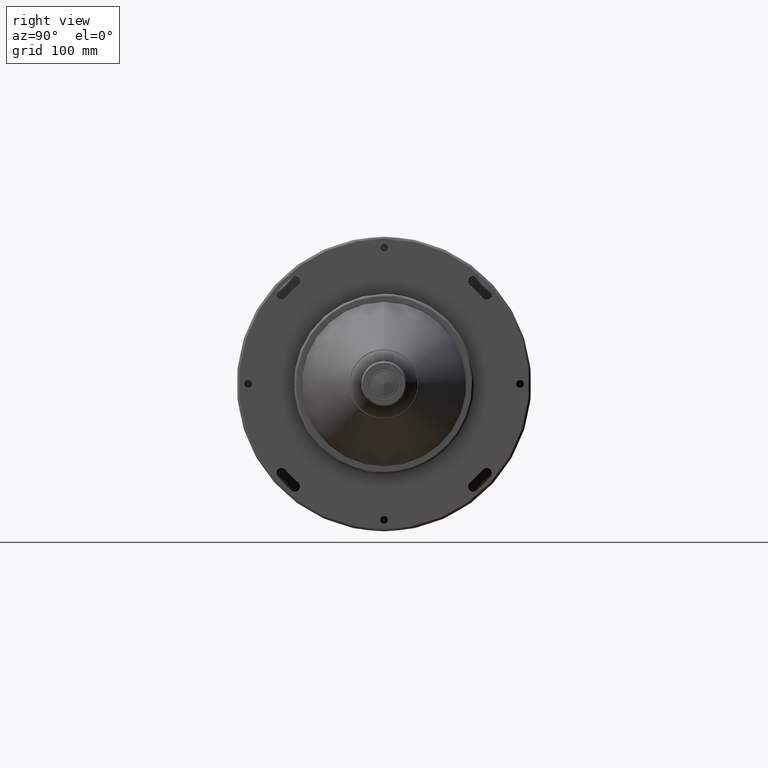
[diagram: clean part render]
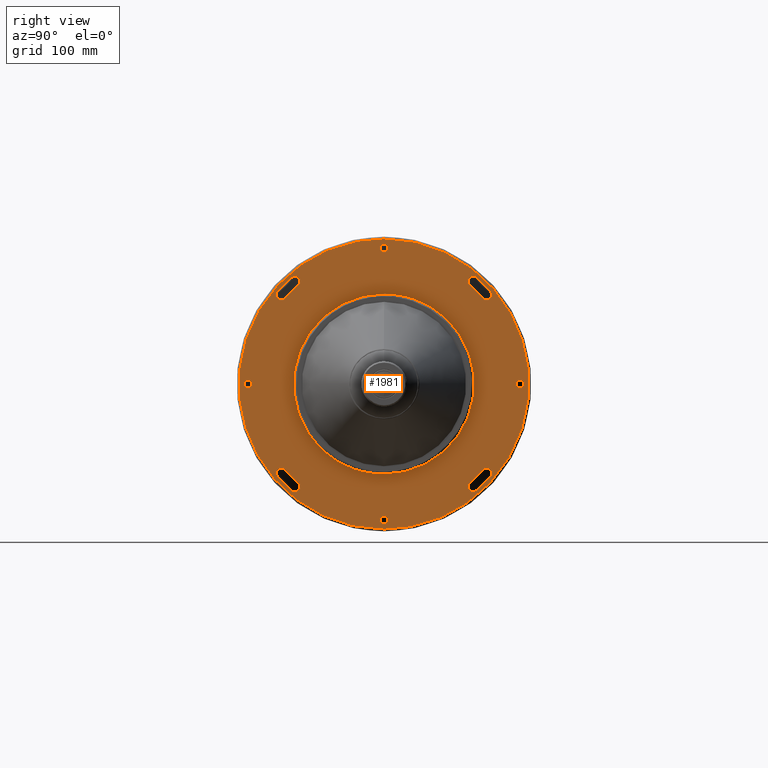
[diagram: same view with one face highlighted and labeled with its STEP entity id]
A machine part, right view. The second image highlights one B-rep face of the part: STEP entity #1981.
In plain terms, the highlighted planar face has unit normal (-1, 0, 0).
Its self-contained STEP definition (entity closure, byte-faithful):
#8 = DIRECTION ( 'NONE',  ( 1.000000000000000000, 0.0000000000000000000, 0.0000000000000000000 ) ) ;
#11 = VERTEX_POINT ( 'NONE', #1114 ) ;
#14 = DIRECTION ( 'NONE',  ( 0.0000000000000000000, 0.0000000000000000000, -1.000000000000000000 ) ) ;
#21 = EDGE_CURVE ( 'NONE', #3290, #303, #3824, .T. ) ;
#36 = AXIS2_PLACEMENT_3D ( 'NONE', #949, #1939, #3972 ) ;
#41 = CARTESIAN_POINT ( 'NONE',  ( 264.3000000000000100, 0.0000000000000000000, 116.5999999999999900 ) ) ;
#52 = CIRCLE ( 'NONE', #36, 115.5000000000000000 ) ;
#64 = CARTESIAN_POINT ( 'NONE',  ( 264.3000000000000100, 81.67934910882071600, -93.96134273836167900 ) ) ;
#70 = EDGE_CURVE ( 'NONE', #3647, #3522, #595, .T. ) ;
#78 = CARTESIAN_POINT ( 'NONE',  ( 264.3000000000000100, -90.56514962700002500, -78.72708347900002900 ) ) ;
#85 = CARTESIAN_POINT ( 'NONE',  ( 264.3000000000000100, -78.72708347900002900, -90.56514962700002500 ) ) ;
#129 = AXIS2_PLACEMENT_3D ( 'NONE', #915, #2934, #3451 ) ;
#156 = ORIENTED_EDGE ( 'NONE', *, *, #70, .F. ) ;
#198 = DIRECTION ( 'NONE',  ( 1.000000000000000000, 0.0000000000000000000, 0.0000000000000000000 ) ) ;
#211 = EDGE_CURVE ( 'NONE', #5211, #1183, #2301, .T. ) ;
#222 = CIRCLE ( 'NONE', #5371, 115.5000000000000000 ) ;
#229 = EDGE_LOOP ( 'NONE', ( #156, #3398, #1345, #608, #988 ) ) ;
#244 = AXIS2_PLACEMENT_3D ( 'NONE', #1082, #4746, #515 ) ;
#248 = DIRECTION ( 'NONE',  ( 1.000000000000000000, 0.0000000000000000000, 0.0000000000000000000 ) ) ;
#271 = ORIENTED_EDGE ( 'NONE', *, *, #3216, .F. ) ;
#276 = CARTESIAN_POINT ( 'NONE',  ( 264.3000000000000100, 0.0000000000000000000, -120.0000000000000000 ) ) ;
#290 = CARTESIAN_POINT ( 'NONE',  ( 264.3000000000000100, 0.0000000000000000000, 127.9999999754913300 ) ) ;
#303 = VERTEX_POINT ( 'NONE', #6063 ) ;
#305 = EDGE_CURVE ( 'NONE', #2520, #323, #2144, .T. ) ;
#323 = VERTEX_POINT ( 'NONE', #825 ) ;
#340 = AXIS2_PLACEMENT_3D ( 'NONE', #4350, #5436, #2873 ) ;
#375 = CIRCLE ( 'NONE', #4115, 124.5000000000000000 ) ;
#383 = DIRECTION ( 'NONE',  ( 1.000000000000000000, 0.0000000000000000000, 0.0000000000000000000 ) ) ;
#419 = CIRCLE ( 'NONE', #6519, 4.499999999999990200 ) ;
#428 = CIRCLE ( 'NONE', #683, 124.5000000000000000 ) ;
#429 = EDGE_LOOP ( 'NONE', ( #4692, #4621, #4141, #1944, #1680 ) ) ;
#449 = VERTEX_POINT ( 'NONE', #2046 ) ;
#452 = DIRECTION ( 'NONE',  ( 0.0000000000000000000, 0.0000000000000000000, -1.000000000000000000 ) ) ;
#513 = CIRCLE ( 'NONE', #5414, 4.500000000000003600 ) ;
#515 = DIRECTION ( 'NONE',  ( 0.0000000000000000000, 0.0000000000000000000, 1.000000000000000000 ) ) ;
#552 = EDGE_LOOP ( 'NONE', ( #2875, #6662 ) ) ;
#595 = CIRCLE ( 'NONE', #2380, 4.499999999999990200 ) ;
#608 = ORIENTED_EDGE ( 'NONE', *, *, #5319, .F. ) ;
#622 = EDGE_CURVE ( 'NONE', #2435, #6637, #4304, .T. ) ;
#634 = CIRCLE ( 'NONE', #3844, 4.499999999999990200 ) ;
#662 = CARTESIAN_POINT ( 'NONE',  ( 264.3000000000000100, 0.0000000000000000000, -127.9999999754913300 ) ) ;
#683 = AXIS2_PLACEMENT_3D ( 'NONE', #1571, #8, #2120 ) ;
#698 = CARTESIAN_POINT ( 'NONE',  ( 264.3000000000000100, 0.0000000000000000000, 0.0000000000000000000 ) ) ;
#740 = DIRECTION ( 'NONE',  ( 1.000000000000000000, 0.0000000000000000000, 0.0000000000000000000 ) ) ;
#759 = CARTESIAN_POINT ( 'NONE',  ( 264.3000000000000100, 78.72708347900002900, 90.56514962700002500 ) ) ;
#783 = DIRECTION ( 'NONE',  ( 1.000000000000000000, 0.0000000000000000000, 0.0000000000000000000 ) ) ;
#796 = ORIENTED_EDGE ( 'NONE', *, *, #1160, .F. ) ;
#805 = CIRCLE ( 'NONE', #1654, 115.5000000000000000 ) ;
#808 = ORIENTED_EDGE ( 'NONE', *, *, #4782, .F. ) ;
#825 = CARTESIAN_POINT ( 'NONE',  ( 264.3000000000000100, 4.163799117101001100E-016, 123.3999999999999900 ) ) ;
#844 = EDGE_CURVE ( 'NONE', #449, #5211, #419, .T. ) ;
#851 = CARTESIAN_POINT ( 'NONE',  ( 264.2999999999999500, -256.0000000016374900, -128.0000000008187400 ) ) ;
#895 = DIRECTION ( 'NONE',  ( 1.000000000000000000, 0.0000000000000000000, 0.0000000000000000000 ) ) ;
#906 = CARTESIAN_POINT ( 'NONE',  ( 264.3000000000000100, 78.72708347900002900, -90.56514962700002500 ) ) ;
#915 = CARTESIAN_POINT ( 'NONE',  ( 264.3000000000000100, 0.0000000000000000000, 0.0000000000000000000 ) ) ;
#917 = DIRECTION ( 'NONE',  ( 0.0000000000000000000, 0.0000000000000000000, -1.000000000000000000 ) ) ;
#949 = CARTESIAN_POINT ( 'NONE',  ( 264.3000000000000100, 0.0000000000000000000, 0.0000000000000000000 ) ) ;
#962 = CIRCLE ( 'NONE', #1293, 3.399999999999999900 ) ;
#988 = ORIENTED_EDGE ( 'NONE', *, *, #4901, .F. ) ;
#1069 = DIRECTION ( 'NONE',  ( 1.000000000000000000, 0.0000000000000000000, 0.0000000000000000000 ) ) ;
#1082 = CARTESIAN_POINT ( 'NONE',  ( 264.3000000000000100, 0.0000000000000000000, 0.0000000000000000000 ) ) ;
#1086 = DIRECTION ( 'NONE',  ( 1.000000000000000000, 0.0000000000000000000, 0.0000000000000000000 ) ) ;
#1114 = CARTESIAN_POINT ( 'NONE',  ( 264.3000000000000100, 0.0000000000000000000, 127.9999999754913300 ) ) ;
#1160 = EDGE_CURVE ( 'NONE', #4039, #4814, #4197, .T. ) ;
#1167 = DIRECTION ( 'NONE',  ( 1.000000000000000000, 0.0000000000000000000, 0.0000000000000000000 ) ) ;
#1171 = AXIS2_PLACEMENT_3D ( 'NONE', #4886, #3270, #4865 ) ;
#1179 = ORIENTED_EDGE ( 'NONE', *, *, #2219, .F. ) ;
#1183 = VERTEX_POINT ( 'NONE', #4373 ) ;
#1222 = DIRECTION ( 'NONE',  ( 0.0000000000000000000, 0.0000000000000000000, -1.000000000000000000 ) ) ;
#1237 = EDGE_CURVE ( 'NONE', #3647, #5708, #805, .T. ) ;
#1243 = DIRECTION ( 'NONE',  ( -1.000000000000000000, 0.0000000000000000000, 0.0000000000000000000 ) ) ;
#1284 = FACE_BOUND ( 'NONE', #5028, .T. ) ;
#1286 = CARTESIAN_POINT ( 'NONE',  ( 264.3000000000000100, -78.72708347900002900, -90.56514962700002500 ) ) ;
#1293 = AXIS2_PLACEMENT_3D ( 'NONE', #4139, #4045, #5121 ) ;
#1342 = AXIS2_PLACEMENT_3D ( 'NONE', #5415, #198, #6493 ) ;
#1345 = ORIENTED_EDGE ( 'NONE', *, *, #4591, .F. ) ;
#1405 = VERTEX_POINT ( 'NONE', #4545 ) ;
#1497 = VERTEX_POINT ( 'NONE', #2039 ) ;
#1556 = ORIENTED_EDGE ( 'NONE', *, *, #4941, .F. ) ;
#1571 = CARTESIAN_POINT ( 'NONE',  ( 264.3000000000000100, 0.0000000000000000000, 0.0000000000000000000 ) ) ;
#1628 = CARTESIAN_POINT ( 'NONE',  ( 264.3000000000000100, 90.56514962700002500, 78.72708347900002900 ) ) ;
#1654 = AXIS2_PLACEMENT_3D ( 'NONE', #2472, #895, #917 ) ;
#1680 = ORIENTED_EDGE ( 'NONE', *, *, #844, .F. ) ;
#1681 = EDGE_CURVE ( 'NONE', #6166, #3315, #375, .T. ) ;
#1687 = CARTESIAN_POINT ( 'NONE',  ( 264.3000000000001300, 256.0000000016374900, -128.0000000008187400 ) ) ;
#1767 = CIRCLE ( 'NONE', #129, 79.50000000000000000 ) ;
#1891 = DIRECTION ( 'NONE',  ( 1.000000000000000000, -0.0000000000000000000, 0.0000000000000000000 ) ) ;
#1923 = AXIS2_PLACEMENT_3D ( 'NONE', #1628, #6300, #3133 ) ;
#1939 = DIRECTION ( 'NONE',  ( 1.000000000000000000, 0.0000000000000000000, 0.0000000000000000000 ) ) ;
#1944 = ORIENTED_EDGE ( 'NONE', *, *, #211, .F. ) ;
#1947 = AXIS2_PLACEMENT_3D ( 'NONE', #6042, #6517, #2943 ) ;
#1965 = ORIENTED_EDGE ( 'NONE', *, *, #3006, .F. ) ;
#1981 = ADVANCED_FACE ( 'NONE', ( #5410, #6053, #3632, #5660, #4191, #4016, #4270, #1284, #6634, #2258 ), #5336, .F. ) ;
#2004 = CIRCLE ( 'NONE', #1923, 4.500000000000003600 ) ;
#2035 = VERTEX_POINT ( 'NONE', #2662 ) ;
#2039 = CARTESIAN_POINT ( 'NONE',  ( 264.3000000000000100, 4.163799117101018300E-016, -116.5999999999999800 ) ) ;
#2046 = CARTESIAN_POINT ( 'NONE',  ( 264.3000000000000100, 78.72708347900002900, -95.06514962700001100 ) ) ;
#2058 = CARTESIAN_POINT ( 'NONE',  ( 264.3000000000000100, -120.0000000000000000, 0.0000000000000000000 ) ) ;
#2060 = EDGE_CURVE ( 'NONE', #11, #2355, #2886, .T. ) ;
#2083 = DIRECTION ( 'NONE',  ( 0.0000000000000000000, 0.0000000000000000000, -1.000000000000000000 ) ) ;
#2084 = AXIS2_PLACEMENT_3D ( 'NONE', #3722, #4818, #6363 ) ;
#2120 = DIRECTION ( 'NONE',  ( 0.0000000000000000000, 0.0000000000000000000, -1.000000000000000000 ) ) ;
#2144 = CIRCLE ( 'NONE', #4440, 3.400000000000000400 ) ;
#2158 = EDGE_LOOP ( 'NONE', ( #2162, #3346 ) ) ;
#2162 = ORIENTED_EDGE ( 'NONE', *, *, #4786, .F. ) ;
#2197 = CARTESIAN_POINT ( 'NONE',  ( 264.3000000000000100, -87.16895651363826400, 75.77481785103343300 ) ) ;
#2219 = EDGE_CURVE ( 'NONE', #2035, #3316, #4096, .T. ) ;
#2239 = ORIENTED_EDGE ( 'NONE', *, *, #5621, .T. ) ;
#2258 = FACE_OUTER_BOUND ( 'NONE', #2158, .T. ) ;
#2267 = VERTEX_POINT ( 'NONE', #4060 ) ;
#2301 = CIRCLE ( 'NONE', #1342, 124.5000000000000000 ) ;
#2323 = CIRCLE ( 'NONE', #1171, 3.400000000000014100 ) ;
#2346 = DIRECTION ( 'NONE',  ( 0.0000000000000000000, 0.0000000000000000000, -1.000000000000000000 ) ) ;
#2355 = VERTEX_POINT ( 'NONE', #5239 ) ;
#2380 = AXIS2_PLACEMENT_3D ( 'NONE', #78, #5307, #2766 ) ;
#2384 = DIRECTION ( 'NONE',  ( 0.0000000000000000000, 0.0000000000000000000, -1.000000000000000000 ) ) ;
#2429 = CARTESIAN_POINT ( 'NONE',  ( 264.2999999999999500, -256.0000000016374900, 128.0000000008187400 ) ) ;
#2435 = VERTEX_POINT ( 'NONE', #3567 ) ;
#2472 = CARTESIAN_POINT ( 'NONE',  ( 264.3000000000000100, 0.0000000000000000000, 0.0000000000000000000 ) ) ;
#2520 = VERTEX_POINT ( 'NONE', #41 ) ;
#2525 = EDGE_CURVE ( 'NONE', #3195, #3073, #2004, .T. ) ;
#2589 = CARTESIAN_POINT ( 'NONE',  ( 264.3000000000000100, -90.56514962700002500, 78.72708347900002900 ) ) ;
#2623 = EDGE_CURVE ( 'NONE', #303, #3290, #2729, .T. ) ;
#2643 = CARTESIAN_POINT ( 'NONE',  ( 264.3000000000000100, 75.77481783462846500, -87.16895652789888500 ) ) ;
#2662 = CARTESIAN_POINT ( 'NONE',  ( 264.3000000000000100, -75.77481785247937300, 87.16895651257547700 ) ) ;
#2678 = CARTESIAN_POINT ( 'NONE',  ( 264.3000000000000100, -90.56514962700002500, 74.22708347900001500 ) ) ;
#2685 = ORIENTED_EDGE ( 'NONE', *, *, #6450, .F. ) ;
#2688 = CARTESIAN_POINT ( 'NONE',  ( 264.3000000000000100, 0.0000000000000000000, 0.0000000000000000000 ) ) ;
#2710 = ORIENTED_EDGE ( 'NONE', *, *, #1681, .F. ) ;
#2714 = ORIENTED_EDGE ( 'NONE', *, *, #305, .F. ) ;
#2729 = CIRCLE ( 'NONE', #2084, 3.399999999999999900 ) ;
#2733 =( BOUNDED_CURVE ( )  B_SPLINE_CURVE ( 3, ( #4930, #851, #2429, #290 ),
 .UNSPECIFIED., .F., .T. ) 
 B_SPLINE_CURVE_WITH_KNOTS ( ( 4, 4 ),
 ( 0.0000000000000000000, 1.000000000000000000 ),
 .UNSPECIFIED. ) 
 CURVE ( )  GEOMETRIC_REPRESENTATION_ITEM ( )  RATIONAL_B_SPLINE_CURVE ( ( 0.9565783021300911000, 0.3188594340433640300, 0.3188594340433640300, 0.9565783021300911000 ) ) 
 REPRESENTATION_ITEM ( '' )  );
#2766 = DIRECTION ( 'NONE',  ( 0.0000000000000000000, 0.0000000000000000000, -1.000000000000000000 ) ) ;
#2768 = CARTESIAN_POINT ( 'NONE',  ( 264.3000000000000100, -75.77481784289122400, -87.16895652071615100 ) ) ;
#2780 = CARTESIAN_POINT ( 'NONE',  ( 264.3000000000000100, 90.56514962700002500, 74.22708347900001500 ) ) ;
#2789 = CARTESIAN_POINT ( 'NONE',  ( 264.3000000000000100, -87.16895650402145200, -75.77481786231966500 ) ) ;
#2873 = DIRECTION ( 'NONE',  ( 0.0000000000000000000, 0.0000000000000000000, -1.000000000000000000 ) ) ;
#2875 = ORIENTED_EDGE ( 'NONE', *, *, #2623, .F. ) ;
#2877 = DIRECTION ( 'NONE',  ( 1.000000000000000000, 0.0000000000000000000, 0.0000000000000000000 ) ) ;
#2878 = EDGE_CURVE ( 'NONE', #4814, #4039, #962, .T. ) ;
#2886 =( BOUNDED_CURVE ( )  B_SPLINE_CURVE ( 3, ( #6334, #4773, #1687, #662 ),
 .UNSPECIFIED., .F., .F. ) 
 B_SPLINE_CURVE_WITH_KNOTS ( ( 4, 4 ),
 ( 0.0000000000000000000, 1.000000000000000000 ),
 .UNSPECIFIED. ) 
 CURVE ( )  GEOMETRIC_REPRESENTATION_ITEM ( )  RATIONAL_B_SPLINE_CURVE ( ( 0.9565783021300921000, 0.3188594340433640300, 0.3188594340433640300, 0.9565783021300921000 ) ) 
 REPRESENTATION_ITEM ( '' )  );
#2888 = CARTESIAN_POINT ( 'NONE',  ( 264.3000000000000100, -78.72708347900002900, -95.06514962700001100 ) ) ;
#2891 = AXIS2_PLACEMENT_3D ( 'NONE', #276, #6027, #4409 ) ;
#2934 = DIRECTION ( 'NONE',  ( 1.000000000000000000, -0.0000000000000000000, -0.0000000000000000000 ) ) ;
#2943 = DIRECTION ( 'NONE',  ( 0.0000000000000000000, 0.0000000000000000000, -1.000000000000000000 ) ) ;
#2957 = CIRCLE ( 'NONE', #4612, 4.499999999999990200 ) ;
#3006 = EDGE_CURVE ( 'NONE', #3316, #5450, #5722, .T. ) ;
#3041 = CIRCLE ( 'NONE', #6203, 4.499999999999990200 ) ;
#3070 = AXIS2_PLACEMENT_3D ( 'NONE', #759, #740, #4936 ) ;
#3073 = VERTEX_POINT ( 'NONE', #2780 ) ;
#3105 = DIRECTION ( 'NONE',  ( 1.000000000000000000, 0.0000000000000000000, 0.0000000000000000000 ) ) ;
#3108 = DIRECTION ( 'NONE',  ( 1.000000000000000000, 0.0000000000000000000, 0.0000000000000000000 ) ) ;
#3110 = AXIS2_PLACEMENT_3D ( 'NONE', #85, #3677, #6274 ) ;
#3133 = DIRECTION ( 'NONE',  ( 0.0000000000000000000, 0.0000000000000000000, -1.000000000000000000 ) ) ;
#3169 = EDGE_CURVE ( 'NONE', #1497, #3577, #2323, .T. ) ;
#3195 = VERTEX_POINT ( 'NONE', #3851 ) ;
#3203 = CIRCLE ( 'NONE', #2891, 3.400000000000014100 ) ;
#3216 = EDGE_CURVE ( 'NONE', #3577, #1497, #3203, .T. ) ;
#3270 = DIRECTION ( 'NONE',  ( 1.000000000000000000, 0.0000000000000000000, 0.0000000000000000000 ) ) ;
#3290 = VERTEX_POINT ( 'NONE', #4474 ) ;
#3315 = VERTEX_POINT ( 'NONE', #5013 ) ;
#3316 = VERTEX_POINT ( 'NONE', #3473 ) ;
#3338 = EDGE_LOOP ( 'NONE', ( #2714, #5425 ) ) ;
#3346 = ORIENTED_EDGE ( 'NONE', *, *, #2060, .F. ) ;
#3352 = CARTESIAN_POINT ( 'NONE',  ( 264.3000000000000100, 0.0000000000000000000, 0.0000000000000000000 ) ) ;
#3398 = ORIENTED_EDGE ( 'NONE', *, *, #1237, .T. ) ;
#3440 = EDGE_CURVE ( 'NONE', #1183, #2267, #2957, .T. ) ;
#3451 = DIRECTION ( 'NONE',  ( 0.0000000000000000000, 0.0000000000000000000, 1.000000000000000000 ) ) ;
#3471 = CARTESIAN_POINT ( 'NONE',  ( 264.3000000000000100, -93.96134273513278900, 81.67934911253516400 ) ) ;
#3473 = CARTESIAN_POINT ( 'NONE',  ( 264.3000000000000100, -81.67934910951729000, 93.96134273775618300 ) ) ;
#3522 = VERTEX_POINT ( 'NONE', #5668 ) ;
#3551 = ORIENTED_EDGE ( 'NONE', *, *, #3728, .F. ) ;
#3567 = CARTESIAN_POINT ( 'NONE',  ( 264.3000000000000100, 9.735942053221458500E-015, -79.50000000000000000 ) ) ;
#3577 = VERTEX_POINT ( 'NONE', #3798 ) ;
#3587 = CARTESIAN_POINT ( 'NONE',  ( 264.3000000000000100, 0.0000000000000000000, 120.0000000000000000 ) ) ;
#3590 = CARTESIAN_POINT ( 'NONE',  ( 264.3000000000000100, -81.67934910289922400, -93.96134274350914900 ) ) ;
#3628 = CIRCLE ( 'NONE', #6062, 115.5000000000000000 ) ;
#3632 = FACE_BOUND ( 'NONE', #229, .T. ) ;
#3647 = VERTEX_POINT ( 'NONE', #2789 ) ;
#3662 = ORIENTED_EDGE ( 'NONE', *, *, #2525, .F. ) ;
#3677 = DIRECTION ( 'NONE',  ( 1.000000000000000000, 0.0000000000000000000, 0.0000000000000000000 ) ) ;
#3722 = CARTESIAN_POINT ( 'NONE',  ( 264.3000000000000100, -120.0000000000000000, 0.0000000000000000000 ) ) ;
#3724 = CARTESIAN_POINT ( 'NONE',  ( 264.3000000000000100, 0.0000000000000000000, 79.50000000000000000 ) ) ;
#3728 = EDGE_CURVE ( 'NONE', #3073, #6166, #6210, .T. ) ;
#3768 = EDGE_CURVE ( 'NONE', #5005, #2267, #52, .T. ) ;
#3798 = CARTESIAN_POINT ( 'NONE',  ( 264.3000000000000100, 0.0000000000000000000, -123.4000000000000100 ) ) ;
#3824 = CIRCLE ( 'NONE', #4922, 3.399999999999999900 ) ;
#3832 = CIRCLE ( 'NONE', #1947, 4.500000000000003600 ) ;
#3844 = AXIS2_PLACEMENT_3D ( 'NONE', #906, #383, #4001 ) ;
#3851 = CARTESIAN_POINT ( 'NONE',  ( 264.3000000000000100, 87.16895652012803500, 75.77481784356778900 ) ) ;
#3870 = DIRECTION ( 'NONE',  ( 0.0000000000000000000, 0.0000000000000000000, -1.000000000000000000 ) ) ;
#3932 = DIRECTION ( 'NONE',  ( 0.0000000000000000000, 0.0000000000000000000, 1.000000000000000000 ) ) ;
#3972 = DIRECTION ( 'NONE',  ( 0.0000000000000000000, 0.0000000000000000000, -1.000000000000000000 ) ) ;
#4001 = DIRECTION ( 'NONE',  ( 0.0000000000000000000, 0.0000000000000000000, -1.000000000000000000 ) ) ;
#4016 = FACE_BOUND ( 'NONE', #3338, .T. ) ;
#4027 = ORIENTED_EDGE ( 'NONE', *, *, #5345, .F. ) ;
#4039 = VERTEX_POINT ( 'NONE', #4791 ) ;
#4045 = DIRECTION ( 'NONE',  ( 1.000000000000000000, 0.0000000000000000000, 0.0000000000000000000 ) ) ;
#4060 = CARTESIAN_POINT ( 'NONE',  ( 264.3000000000000100, 87.16895649827141300, -75.77481786871095400 ) ) ;
#4096 = CIRCLE ( 'NONE', #6695, 4.500000000000003600 ) ;
#4115 = AXIS2_PLACEMENT_3D ( 'NONE', #2688, #4762, #1222 ) ;
#4139 = CARTESIAN_POINT ( 'NONE',  ( 264.3000000000000100, 120.0000000000000000, 0.0000000000000000000 ) ) ;
#4141 = ORIENTED_EDGE ( 'NONE', *, *, #3440, .F. ) ;
#4191 = FACE_BOUND ( 'NONE', #5199, .T. ) ;
#4197 = CIRCLE ( 'NONE', #340, 3.399999999999999900 ) ;
#4230 = CARTESIAN_POINT ( 'NONE',  ( 264.3000000000000100, 93.96134273805893100, 81.67934910916902400 ) ) ;
#4270 = FACE_BOUND ( 'NONE', #552, .T. ) ;
#4283 = VERTEX_POINT ( 'NONE', #2888 ) ;
#4288 = EDGE_LOOP ( 'NONE', ( #1179, #6331, #808, #1556, #1965 ) ) ;
#4304 = CIRCLE ( 'NONE', #244, 79.50000000000000000 ) ;
#4325 = ORIENTED_EDGE ( 'NONE', *, *, #3169, .F. ) ;
#4350 = CARTESIAN_POINT ( 'NONE',  ( 264.3000000000000100, 120.0000000000000000, 0.0000000000000000000 ) ) ;
#4373 = CARTESIAN_POINT ( 'NONE',  ( 264.3000000000000100, 93.96134271838009500, -81.67934913180691600 ) ) ;
#4409 = DIRECTION ( 'NONE',  ( 0.0000000000000000000, 0.0000000000000000000, -1.000000000000000000 ) ) ;
#4410 = EDGE_CURVE ( 'NONE', #323, #2520, #6452, .T. ) ;
#4440 = AXIS2_PLACEMENT_3D ( 'NONE', #6603, #1891, #6537 ) ;
#4452 = AXIS2_PLACEMENT_3D ( 'NONE', #4934, #1243, #3932 ) ;
#4474 = CARTESIAN_POINT ( 'NONE',  ( 264.3000000000000100, -120.0000000000000000, 3.399999999999999900 ) ) ;
#4516 = VERTEX_POINT ( 'NONE', #2197 ) ;
#4545 = CARTESIAN_POINT ( 'NONE',  ( 264.3000000000000100, 75.77481786056874600, 87.16895650534931400 ) ) ;
#4591 = EDGE_CURVE ( 'NONE', #4283, #5708, #5382, .T. ) ;
#4612 = AXIS2_PLACEMENT_3D ( 'NONE', #6270, #3108, #2083 ) ;
#4621 = ORIENTED_EDGE ( 'NONE', *, *, #3768, .T. ) ;
#4624 = CARTESIAN_POINT ( 'NONE',  ( 264.3000000000000100, -78.72708347900002900, 90.56514962700002500 ) ) ;
#4639 = DIRECTION ( 'NONE',  ( 1.000000000000000000, -0.0000000000000000000, 0.0000000000000000000 ) ) ;
#4649 = DIRECTION ( 'NONE',  ( 1.000000000000000000, 0.0000000000000000000, 0.0000000000000000000 ) ) ;
#4678 = DIRECTION ( 'NONE',  ( 0.0000000000000000000, 0.0000000000000000000, -1.000000000000000000 ) ) ;
#4687 = DIRECTION ( 'NONE',  ( 0.0000000000000000000, 0.0000000000000000000, -1.000000000000000000 ) ) ;
#4692 = ORIENTED_EDGE ( 'NONE', *, *, #5471, .F. ) ;
#4746 = DIRECTION ( 'NONE',  ( 1.000000000000000000, -0.0000000000000000000, -0.0000000000000000000 ) ) ;
#4762 = DIRECTION ( 'NONE',  ( 1.000000000000000000, 0.0000000000000000000, 0.0000000000000000000 ) ) ;
#4773 = CARTESIAN_POINT ( 'NONE',  ( 264.3000000000001300, 256.0000000016374900, 128.0000000008187400 ) ) ;
#4782 = EDGE_CURVE ( 'NONE', #6149, #4516, #3832, .T. ) ;
#4786 = EDGE_CURVE ( 'NONE', #2355, #11, #2733, .T. ) ;
#4791 = CARTESIAN_POINT ( 'NONE',  ( 264.3000000000000100, 120.0000000000000000, 3.399999999999999900 ) ) ;
#4814 = VERTEX_POINT ( 'NONE', #5974 ) ;
#4818 = DIRECTION ( 'NONE',  ( 1.000000000000000000, 0.0000000000000000000, 0.0000000000000000000 ) ) ;
#4865 = DIRECTION ( 'NONE',  ( 0.0000000000000000000, 0.0000000000000000000, -1.000000000000000000 ) ) ;
#4869 = AXIS2_PLACEMENT_3D ( 'NONE', #698, #1167, #5347 ) ;
#4886 = CARTESIAN_POINT ( 'NONE',  ( 264.3000000000000100, 0.0000000000000000000, -120.0000000000000000 ) ) ;
#4901 = EDGE_CURVE ( 'NONE', #3522, #6207, #428, .T. ) ;
#4922 = AXIS2_PLACEMENT_3D ( 'NONE', #2058, #1069, #4687 ) ;
#4930 = CARTESIAN_POINT ( 'NONE',  ( 264.3000000000000100, 0.0000000000000000000, -127.9999999754913300 ) ) ;
#4934 = CARTESIAN_POINT ( 'NONE',  ( 264.3000000000000100, -129.5360079060000100, -129.5360000009999900 ) ) ;
#4936 = DIRECTION ( 'NONE',  ( 0.0000000000000000000, 0.0000000000000000000, -1.000000000000000000 ) ) ;
#4941 = EDGE_CURVE ( 'NONE', #5450, #6149, #513, .T. ) ;
#5005 = VERTEX_POINT ( 'NONE', #2643 ) ;
#5013 = CARTESIAN_POINT ( 'NONE',  ( 264.3000000000000100, 81.67934912217103300, 93.96134272675644200 ) ) ;
#5028 = EDGE_LOOP ( 'NONE', ( #271, #4325 ) ) ;
#5041 = EDGE_LOOP ( 'NONE', ( #3662, #2239, #4027, #2710, #3551 ) ) ;
#5121 = DIRECTION ( 'NONE',  ( 0.0000000000000000000, 0.0000000000000000000, -1.000000000000000000 ) ) ;
#5176 = CARTESIAN_POINT ( 'NONE',  ( 264.3000000000000100, 0.0000000000000000000, 0.0000000000000000000 ) ) ;
#5199 = EDGE_LOOP ( 'NONE', ( #6005, #796 ) ) ;
#5211 = VERTEX_POINT ( 'NONE', #64 ) ;
#5239 = CARTESIAN_POINT ( 'NONE',  ( 264.3000000000000100, 0.0000000000000000000, -127.9999999754913300 ) ) ;
#5258 = EDGE_LOOP ( 'NONE', ( #2685, #5262 ) ) ;
#5262 = ORIENTED_EDGE ( 'NONE', *, *, #622, .F. ) ;
#5307 = DIRECTION ( 'NONE',  ( 1.000000000000000000, 0.0000000000000000000, 0.0000000000000000000 ) ) ;
#5319 = EDGE_CURVE ( 'NONE', #6207, #4283, #3041, .T. ) ;
#5336 = PLANE ( 'NONE',  #4452 ) ;
#5345 = EDGE_CURVE ( 'NONE', #3315, #1405, #6616, .T. ) ;
#5347 = DIRECTION ( 'NONE',  ( 0.0000000000000000000, 0.0000000000000000000, -1.000000000000000000 ) ) ;
#5371 = AXIS2_PLACEMENT_3D ( 'NONE', #3352, #248, #3870 ) ;
#5382 = CIRCLE ( 'NONE', #3110, 4.499999999999990200 ) ;
#5393 = EDGE_CURVE ( 'NONE', #2035, #4516, #222, .T. ) ;
#5410 = FACE_BOUND ( 'NONE', #5041, .T. ) ;
#5414 = AXIS2_PLACEMENT_3D ( 'NONE', #2589, #1086, #4678 ) ;
#5415 = CARTESIAN_POINT ( 'NONE',  ( 264.3000000000000100, 0.0000000000000000000, 0.0000000000000000000 ) ) ;
#5425 = ORIENTED_EDGE ( 'NONE', *, *, #4410, .F. ) ;
#5436 = DIRECTION ( 'NONE',  ( 1.000000000000000000, 0.0000000000000000000, 0.0000000000000000000 ) ) ;
#5450 = VERTEX_POINT ( 'NONE', #3471 ) ;
#5461 = CARTESIAN_POINT ( 'NONE',  ( 264.3000000000000100, 90.56514962700002500, 78.72708347900002900 ) ) ;
#5471 = EDGE_CURVE ( 'NONE', #5005, #449, #634, .T. ) ;
#5621 = EDGE_CURVE ( 'NONE', #3195, #1405, #3628, .T. ) ;
#5630 = DIRECTION ( 'NONE',  ( 0.0000000000000000000, 0.0000000000000000000, -1.000000000000000000 ) ) ;
#5643 = CARTESIAN_POINT ( 'NONE',  ( 264.3000000000000100, 78.72708347900002900, -90.56514962700002500 ) ) ;
#5660 = FACE_BOUND ( 'NONE', #429, .T. ) ;
#5667 = DIRECTION ( 'NONE',  ( 1.000000000000000000, 0.0000000000000000000, 0.0000000000000000000 ) ) ;
#5668 = CARTESIAN_POINT ( 'NONE',  ( 264.3000000000000100, -93.96134273745340700, -81.67934910986556900 ) ) ;
#5708 = VERTEX_POINT ( 'NONE', #2768 ) ;
#5712 = AXIS2_PLACEMENT_3D ( 'NONE', #5461, #2877, #2384 ) ;
#5722 = CIRCLE ( 'NONE', #4869, 124.5000000000000000 ) ;
#5974 = CARTESIAN_POINT ( 'NONE',  ( 264.3000000000000100, 120.0000000000000000, -3.399999999999999900 ) ) ;
#6005 = ORIENTED_EDGE ( 'NONE', *, *, #2878, .F. ) ;
#6027 = DIRECTION ( 'NONE',  ( 1.000000000000000000, 0.0000000000000000000, 0.0000000000000000000 ) ) ;
#6042 = CARTESIAN_POINT ( 'NONE',  ( 264.3000000000000100, -90.56514962700002500, 78.72708347900002900 ) ) ;
#6053 = FACE_BOUND ( 'NONE', #4288, .T. ) ;
#6062 = AXIS2_PLACEMENT_3D ( 'NONE', #5176, #3105, #14 ) ;
#6063 = CARTESIAN_POINT ( 'NONE',  ( 264.3000000000000100, -120.0000000000000000, -3.399999999999999900 ) ) ;
#6108 = AXIS2_PLACEMENT_3D ( 'NONE', #3587, #4639, #5630 ) ;
#6149 = VERTEX_POINT ( 'NONE', #2678 ) ;
#6166 = VERTEX_POINT ( 'NONE', #4230 ) ;
#6183 = DIRECTION ( 'NONE',  ( 0.0000000000000000000, 0.0000000000000000000, -1.000000000000000000 ) ) ;
#6203 = AXIS2_PLACEMENT_3D ( 'NONE', #1286, #783, #2346 ) ;
#6207 = VERTEX_POINT ( 'NONE', #3590 ) ;
#6210 = CIRCLE ( 'NONE', #5712, 4.500000000000003600 ) ;
#6270 = CARTESIAN_POINT ( 'NONE',  ( 264.3000000000000100, 90.56514962700002500, -78.72708347900002900 ) ) ;
#6274 = DIRECTION ( 'NONE',  ( 0.0000000000000000000, 0.0000000000000000000, -1.000000000000000000 ) ) ;
#6300 = DIRECTION ( 'NONE',  ( 1.000000000000000000, 0.0000000000000000000, 0.0000000000000000000 ) ) ;
#6331 = ORIENTED_EDGE ( 'NONE', *, *, #5393, .T. ) ;
#6334 = CARTESIAN_POINT ( 'NONE',  ( 264.3000000000000100, 0.0000000000000000000, 127.9999999754913300 ) ) ;
#6363 = DIRECTION ( 'NONE',  ( 0.0000000000000000000, 0.0000000000000000000, -1.000000000000000000 ) ) ;
#6450 = EDGE_CURVE ( 'NONE', #6637, #2435, #1767, .T. ) ;
#6452 = CIRCLE ( 'NONE', #6108, 3.400000000000000400 ) ;
#6493 = DIRECTION ( 'NONE',  ( 0.0000000000000000000, 0.0000000000000000000, -1.000000000000000000 ) ) ;
#6517 = DIRECTION ( 'NONE',  ( 1.000000000000000000, 0.0000000000000000000, 0.0000000000000000000 ) ) ;
#6519 = AXIS2_PLACEMENT_3D ( 'NONE', #5643, #5667, #452 ) ;
#6537 = DIRECTION ( 'NONE',  ( 0.0000000000000000000, 0.0000000000000000000, -1.000000000000000000 ) ) ;
#6603 = CARTESIAN_POINT ( 'NONE',  ( 264.3000000000000100, 0.0000000000000000000, 120.0000000000000000 ) ) ;
#6616 = CIRCLE ( 'NONE', #3070, 4.500000000000003600 ) ;
#6634 = FACE_BOUND ( 'NONE', #5258, .T. ) ;
#6637 = VERTEX_POINT ( 'NONE', #3724 ) ;
#6662 = ORIENTED_EDGE ( 'NONE', *, *, #21, .F. ) ;
#6695 = AXIS2_PLACEMENT_3D ( 'NONE', #4624, #4649, #6183 ) ;